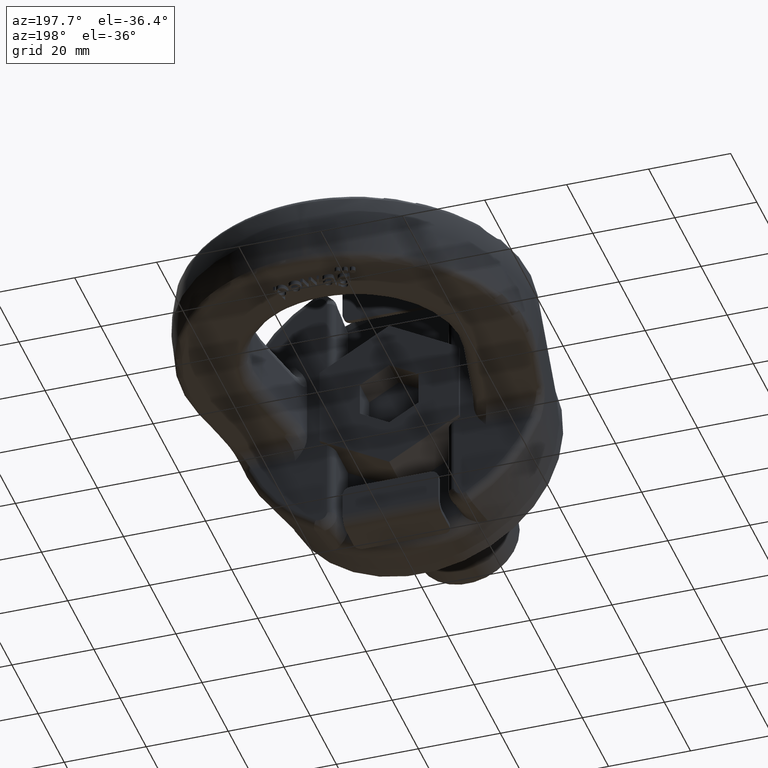
[diagram: clean part render]
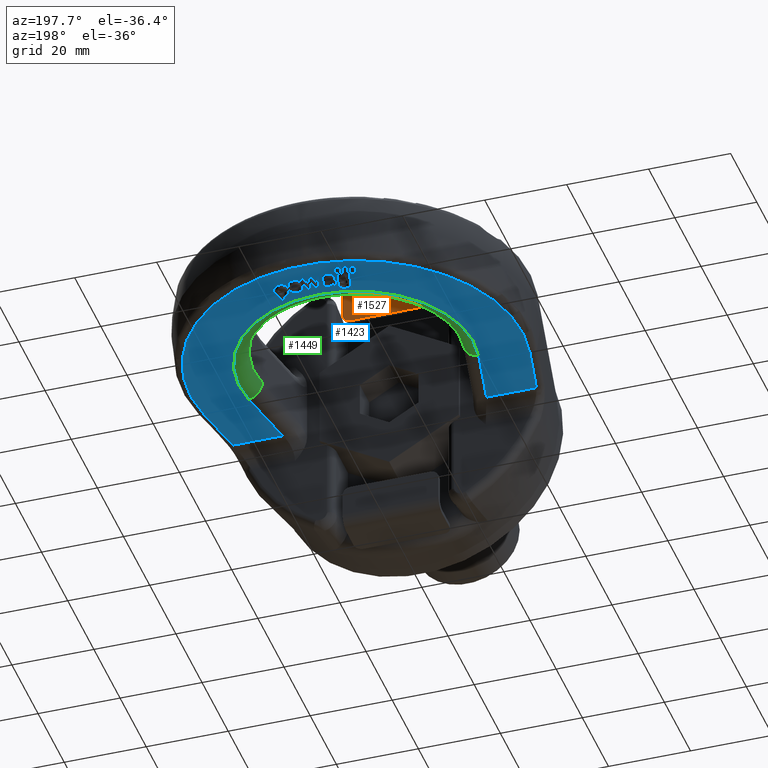
[diagram: same view with three faces highlighted in distinct colors, each labeled with its STEP entity id]
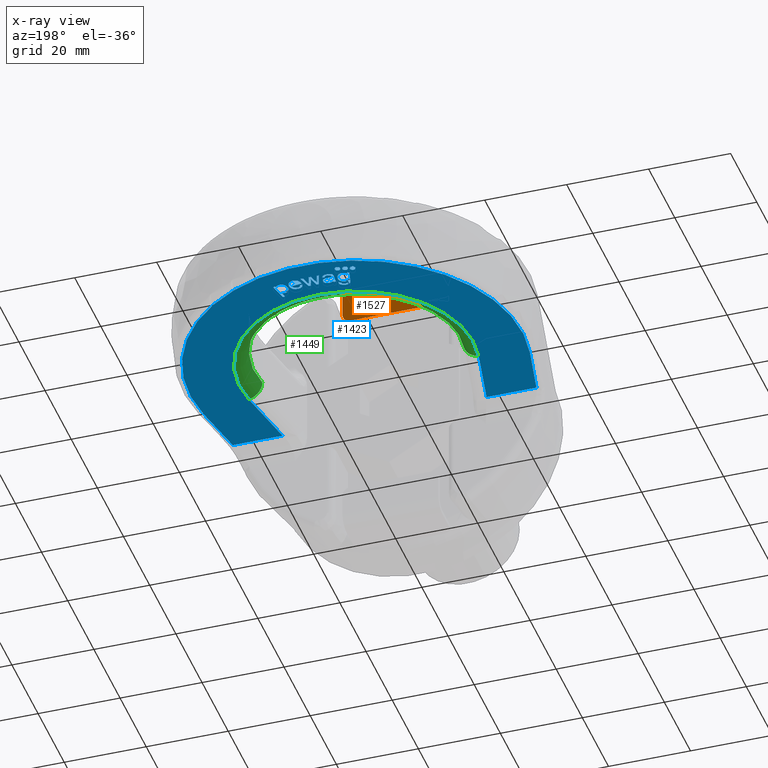
[diagram: x-ray of the same camera — body ghosted, the three highlighted faces saturated]
A machine part, auxiliary view with three faces highlighted in distinct colors.
The next image is the same camera in x-ray (body ghosted, the three faces saturated) — at least one of them is partly hidden behind the body in this view.
Their STEP definitions:

[orange] entity #1527 — the highlighted planar face has unit normal (0, -1, 0).
#1288=FACE_OUTER_BOUND('',#2065,.T.);
#1527=ADVANCED_FACE('',(#1288),#1656,.F.);
#1656=PLANE('',#5347);
#1740=CIRCLE('',#5345,2.);
#1741=CIRCLE('',#5346,2.);
#2065=EDGE_LOOP('',(#3774,#3775,#3776,#3777,#3778,#3779));
#2323=LINE('',#9553,#2659);
#2331=LINE('',#9575,#2667);
#2336=LINE('',#9588,#2672);
#2340=LINE('',#9602,#2676);
#2659=VECTOR('',#6105,1.);
#2667=VECTOR('',#6121,1.);
#2672=VECTOR('',#6130,1.);
#2676=VECTOR('',#6152,1.);
#3774=ORIENTED_EDGE('',*,*,#4804,.T.);
#3775=ORIENTED_EDGE('',*,*,#4812,.T.);
#3776=ORIENTED_EDGE('',*,*,#4798,.T.);
#3777=ORIENTED_EDGE('',*,*,#4813,.F.);
#3778=ORIENTED_EDGE('',*,*,#4788,.F.);
#3779=ORIENTED_EDGE('',*,*,#4814,.T.);
#4224=VERTEX_POINT('',#9552);
#4225=VERTEX_POINT('',#9554);
#4234=VERTEX_POINT('',#9574);
#4235=VERTEX_POINT('',#9576);
#4240=VERTEX_POINT('',#9587);
#4241=VERTEX_POINT('',#9589);
#4788=EDGE_CURVE('',#4224,#4225,#2323,.T.);
#4798=EDGE_CURVE('',#4235,#4234,#2331,.T.);
#4804=EDGE_CURVE('',#4241,#4240,#2336,.T.);
#4812=EDGE_CURVE('',#4240,#4235,#1740,.T.);
#4813=EDGE_CURVE('',#4225,#4234,#2340,.T.);
#4814=EDGE_CURVE('',#4224,#4241,#1741,.T.);
#5345=AXIS2_PLACEMENT_3D('',#9601,#6150,#6151);
#5346=AXIS2_PLACEMENT_3D('',#9603,#6153,#6154);
#5347=AXIS2_PLACEMENT_3D('',#9604,#6155,#6156);
#6105=DIRECTION('',(0.,0.,1.));
#6121=DIRECTION('',(0.,0.,1.));
#6130=DIRECTION('',(-1.,0.,0.));
#6150=DIRECTION('',(0.,1.,0.));
#6151=DIRECTION('',(0.,0.,-1.));
#6152=DIRECTION('',(-1.,0.,0.));
#6153=DIRECTION('',(0.,1.,0.));
#6154=DIRECTION('',(0.,0.,-1.));
#6155=DIRECTION('',(0.,-1.,0.));
#6156=DIRECTION('',(0.,0.,-1.));
#9552=CARTESIAN_POINT('',(11.7,24.,26.));
#9553=CARTESIAN_POINT('',(11.7,24.,24.));
#9554=CARTESIAN_POINT('',(11.7,24.,31.5));
#9574=CARTESIAN_POINT('',(-11.7,24.,31.5));
#9575=CARTESIAN_POINT('',(-11.7,24.,24.));
#9576=CARTESIAN_POINT('',(-11.7,24.,26.));
#9587=CARTESIAN_POINT('',(-9.7,24.,24.));
#9588=CARTESIAN_POINT('',(11.7,24.,24.));
#9589=CARTESIAN_POINT('',(9.7,24.,24.));
#9601=CARTESIAN_POINT('',(-9.7,24.,26.));
#9602=CARTESIAN_POINT('',(11.7,24.,31.5));
#9603=CARTESIAN_POINT('',(9.7,24.,26.));
#9604=CARTESIAN_POINT('',(11.7,24.,24.));

[blue] entity #1423 — the highlighted planar face has unit normal (-0, -0, 1).
#1423=ADVANCED_FACE('',(#1789,#1790,#1791,#1792,#1793,#1794,#1795,#1796,
#1797),#1605,.F.);
#1605=PLANE('',#5249);
#1709=CIRCLE('',#5244,0.675);
#1710=CIRCLE('',#5245,0.675000000000001);
#1711=CIRCLE('',#5246,0.675000000000001);
#1712=CIRCLE('',#5247,28.6);
#1713=CIRCLE('',#5248,40.5659956120887);
#1789=FACE_BOUND('',#1946,.T.);
#1790=FACE_BOUND('',#1947,.T.);
#1791=FACE_BOUND('',#1948,.T.);
#1792=FACE_BOUND('',#1949,.T.);
#1793=FACE_BOUND('',#1950,.T.);
#1794=FACE_BOUND('',#1951,.T.);
#1795=FACE_BOUND('',#1952,.T.);
#1796=FACE_BOUND('',#1953,.T.);
#1797=FACE_BOUND('',#1954,.T.);
#1946=EDGE_LOOP('',(#3273,#3274,#3275,#3276,#3277,#3278,#3279));
#1947=EDGE_LOOP('',(#3280,#3281,#3282,#3283,#3284,#3285,#3286,#3287,#3288,
#3289,#3290,#3291,#3292,#3293,#3294));
#1948=EDGE_LOOP('',(#3295,#3296,#3297,#3298,#3299));
#1949=EDGE_LOOP('',(#3300));
#1950=EDGE_LOOP('',(#3301));
#1951=EDGE_LOOP('',(#3302));
#1952=EDGE_LOOP('',(#3303,#3304,#3305,#3306,#3307,#3308,#3309,#3310));
#1953=EDGE_LOOP('',(#3311,#3312,#3313,#3314,#3315,#3316));
#1954=EDGE_LOOP('',(#3317,#3318,#3319,#3320,#3321,#3322,#3323,#3324,#3325));
#2226=LINE('',#8094,#2534);
#2227=LINE('',#8126,#2535);
#2228=LINE('',#8128,#2536);
#2229=LINE('',#8129,#2537);
#2230=LINE('',#8132,#2538);
#2231=LINE('',#8134,#2539);
#2232=LINE('',#8136,#2540);
#2233=LINE('',#8150,#2541);
#2234=LINE('',#8152,#2542);
#2235=LINE('',#8168,#2543);
#2236=LINE('',#8170,#2544);
#2237=LINE('',#8172,#2545);
#2238=LINE('',#8174,#2546);
#2239=LINE('',#8176,#2547);
#2240=LINE('',#8192,#2548);
#2241=LINE('',#8215,#2549);
#2242=LINE('',#8225,#2550);
#2243=LINE('',#8227,#2551);
#2244=LINE('',#8241,#2552);
#2245=LINE('',#8243,#2553);
#2246=LINE('',#8244,#2554);
#2247=LINE('',#8247,#2555);
#2248=LINE('',#8249,#2556);
#2249=LINE('',#8251,#2557);
#2250=LINE('',#8253,#2558);
#2251=LINE('',#8277,#2559);
#2252=LINE('',#8322,#2560);
#2534=VECTOR('',#5806,1.);
#2535=VECTOR('',#5807,1.);
#2536=VECTOR('',#5808,1.);
#2537=VECTOR('',#5809,1.);
#2538=VECTOR('',#5810,1.);
#2539=VECTOR('',#5811,1.);
#2540=VECTOR('',#5812,1.);
#2541=VECTOR('',#5813,1.);
#2542=VECTOR('',#5814,1.);
#2543=VECTOR('',#5815,1.);
#2544=VECTOR('',#5816,1.);
#2545=VECTOR('',#5817,1.);
#2546=VECTOR('',#5818,1.);
#2547=VECTOR('',#5819,1.);
#2548=VECTOR('',#5820,1.);
#2549=VECTOR('',#5821,1.);
#2550=VECTOR('',#5830,1.);
#2551=VECTOR('',#5831,1.);
#2552=VECTOR('',#5834,1.);
#2553=VECTOR('',#5835,1.);
#2554=VECTOR('',#5836,1.);
#2555=VECTOR('',#5837,1.);
#2556=VECTOR('',#5838,1.);
#2557=VECTOR('',#5839,1.);
#2558=VECTOR('',#5840,1.);
#2559=VECTOR('',#5841,1.);
#2560=VECTOR('',#5842,1.);
#3273=ORIENTED_EDGE('',*,*,#4570,.T.);
#3274=ORIENTED_EDGE('',*,*,#4571,.T.);
#3275=ORIENTED_EDGE('',*,*,#4572,.T.);
#3276=ORIENTED_EDGE('',*,*,#4573,.T.);
#3277=ORIENTED_EDGE('',*,*,#4574,.T.);
#3278=ORIENTED_EDGE('',*,*,#4575,.T.);
#3279=ORIENTED_EDGE('',*,*,#4576,.T.);
#3280=ORIENTED_EDGE('',*,*,#4577,.T.);
#3281=ORIENTED_EDGE('',*,*,#4578,.T.);
#3282=ORIENTED_EDGE('',*,*,#4579,.T.);
#3283=ORIENTED_EDGE('',*,*,#4580,.T.);
#3284=ORIENTED_EDGE('',*,*,#4581,.T.);
#3285=ORIENTED_EDGE('',*,*,#4582,.T.);
#3286=ORIENTED_EDGE('',*,*,#4583,.T.);
#3287=ORIENTED_EDGE('',*,*,#4584,.T.);
#3288=ORIENTED_EDGE('',*,*,#4585,.T.);
#3289=ORIENTED_EDGE('',*,*,#4586,.T.);
#3290=ORIENTED_EDGE('',*,*,#4587,.T.);
#3291=ORIENTED_EDGE('',*,*,#4588,.T.);
#3292=ORIENTED_EDGE('',*,*,#4589,.T.);
#3293=ORIENTED_EDGE('',*,*,#4590,.T.);
#3294=ORIENTED_EDGE('',*,*,#4591,.T.);
#3295=ORIENTED_EDGE('',*,*,#4592,.T.);
#3296=ORIENTED_EDGE('',*,*,#4593,.T.);
#3297=ORIENTED_EDGE('',*,*,#4594,.T.);
#3298=ORIENTED_EDGE('',*,*,#4595,.T.);
#3299=ORIENTED_EDGE('',*,*,#4596,.T.);
#3300=ORIENTED_EDGE('',*,*,#4597,.F.);
#3301=ORIENTED_EDGE('',*,*,#4598,.F.);
#3302=ORIENTED_EDGE('',*,*,#4599,.F.);
#3303=ORIENTED_EDGE('',*,*,#4600,.T.);
#3304=ORIENTED_EDGE('',*,*,#4601,.T.);
#3305=ORIENTED_EDGE('',*,*,#4602,.T.);
#3306=ORIENTED_EDGE('',*,*,#4603,.T.);
#3307=ORIENTED_EDGE('',*,*,#4604,.T.);
#3308=ORIENTED_EDGE('',*,*,#4605,.T.);
#3309=ORIENTED_EDGE('',*,*,#4606,.T.);
#3310=ORIENTED_EDGE('',*,*,#4607,.T.);
#3311=ORIENTED_EDGE('',*,*,#4608,.T.);
#3312=ORIENTED_EDGE('',*,*,#4609,.T.);
#3313=ORIENTED_EDGE('',*,*,#4610,.T.);
#3314=ORIENTED_EDGE('',*,*,#4611,.T.);
#3315=ORIENTED_EDGE('',*,*,#4612,.T.);
#3316=ORIENTED_EDGE('',*,*,#4613,.T.);
#3317=ORIENTED_EDGE('',*,*,#4614,.T.);
#3318=ORIENTED_EDGE('',*,*,#4615,.T.);
#3319=ORIENTED_EDGE('',*,*,#4616,.T.);
#3320=ORIENTED_EDGE('',*,*,#4617,.T.);
#3321=ORIENTED_EDGE('',*,*,#4618,.T.);
#3322=ORIENTED_EDGE('',*,*,#4619,.T.);
#3323=ORIENTED_EDGE('',*,*,#4620,.T.);
#3324=ORIENTED_EDGE('',*,*,#4621,.T.);
#3325=ORIENTED_EDGE('',*,*,#4622,.T.);
#4087=VERTEX_POINT('',#8087);
#4088=VERTEX_POINT('',#8088);
#4089=VERTEX_POINT('',#8093);
#4090=VERTEX_POINT('',#8095);
#4091=VERTEX_POINT('',#8108);
#4092=VERTEX_POINT('',#8125);
#4093=VERTEX_POINT('',#8127);
#4094=VERTEX_POINT('',#8130);
#4095=VERTEX_POINT('',#8131);
#4096=VERTEX_POINT('',#8133);
#4097=VERTEX_POINT('',#8135);
#4098=VERTEX_POINT('',#8137);
#4099=VERTEX_POINT('',#8144);
#4100=VERTEX_POINT('',#8149);
#4101=VERTEX_POINT('',#8151);
#4102=VERTEX_POINT('',#8153);
#4103=VERTEX_POINT('',#8160);
#4104=VERTEX_POINT('',#8167);
#4105=VERTEX_POINT('',#8169);
#4106=VERTEX_POINT('',#8171);
#4107=VERTEX_POINT('',#8173);
#4108=VERTEX_POINT('',#8175);
#4109=VERTEX_POINT('',#8185);
#4110=VERTEX_POINT('',#8186);
#4111=VERTEX_POINT('',#8191);
#4112=VERTEX_POINT('',#8193);
#4113=VERTEX_POINT('',#8214);
#4114=VERTEX_POINT('',#8217);
#4115=VERTEX_POINT('',#8219);
#4116=VERTEX_POINT('',#8221);
#4117=VERTEX_POINT('',#8223);
#4118=VERTEX_POINT('',#8224);
#4119=VERTEX_POINT('',#8226);
#4120=VERTEX_POINT('',#8228);
#4121=VERTEX_POINT('',#8233);
#4122=VERTEX_POINT('',#8235);
#4123=VERTEX_POINT('',#8240);
#4124=VERTEX_POINT('',#8242);
#4125=VERTEX_POINT('',#8245);
#4126=VERTEX_POINT('',#8246);
#4127=VERTEX_POINT('',#8248);
#4128=VERTEX_POINT('',#8250);
#4129=VERTEX_POINT('',#8252);
#4130=VERTEX_POINT('',#8254);
#4131=VERTEX_POINT('',#8278);
#4132=VERTEX_POINT('',#8279);
#4133=VERTEX_POINT('',#8284);
#4134=VERTEX_POINT('',#8301);
#4135=VERTEX_POINT('',#8308);
#4136=VERTEX_POINT('',#8321);
#4137=VERTEX_POINT('',#8323);
#4138=VERTEX_POINT('',#8328);
#4139=VERTEX_POINT('',#8341);
#4570=EDGE_CURVE('',#4087,#4088,#4995,.T.);
#4571=EDGE_CURVE('',#4088,#4089,#4996,.T.);
#4572=EDGE_CURVE('',#4089,#4090,#2226,.T.);
#4573=EDGE_CURVE('',#4090,#4091,#4997,.T.);
#4574=EDGE_CURVE('',#4091,#4092,#4998,.T.);
#4575=EDGE_CURVE('',#4092,#4093,#2227,.T.);
#4576=EDGE_CURVE('',#4093,#4087,#2228,.T.);
#4577=EDGE_CURVE('',#4094,#4095,#2229,.T.);
#4578=EDGE_CURVE('',#4095,#4096,#2230,.T.);
#4579=EDGE_CURVE('',#4096,#4097,#2231,.T.);
#4580=EDGE_CURVE('',#4097,#4098,#2232,.T.);
#4581=EDGE_CURVE('',#4098,#4099,#4999,.T.);
#4582=EDGE_CURVE('',#4099,#4100,#5000,.T.);
#4583=EDGE_CURVE('',#4100,#4101,#2233,.T.);
#4584=EDGE_CURVE('',#4101,#4102,#2234,.T.);
#4585=EDGE_CURVE('',#4102,#4103,#5001,.T.);
#4586=EDGE_CURVE('',#4103,#4104,#5002,.T.);
#4587=EDGE_CURVE('',#4104,#4105,#2235,.T.);
#4588=EDGE_CURVE('',#4105,#4106,#2236,.T.);
#4589=EDGE_CURVE('',#4106,#4107,#2237,.T.);
#4590=EDGE_CURVE('',#4107,#4108,#2238,.T.);
#4591=EDGE_CURVE('',#4108,#4094,#2239,.T.);
#4592=EDGE_CURVE('',#4109,#4110,#5003,.T.);
#4593=EDGE_CURVE('',#4110,#4111,#5004,.T.);
#4594=EDGE_CURVE('',#4111,#4112,#2240,.T.);
#4595=EDGE_CURVE('',#4112,#4113,#5005,.T.);
#4596=EDGE_CURVE('',#4113,#4109,#2241,.T.);
#4597=EDGE_CURVE('',#4114,#4114,#1709,.T.);
#4598=EDGE_CURVE('',#4115,#4115,#1710,.T.);
#4599=EDGE_CURVE('',#4116,#4116,#1711,.T.);
#4600=EDGE_CURVE('',#4117,#4118,#1712,.T.);
#4601=EDGE_CURVE('',#4118,#4119,#2242,.T.);
#4602=EDGE_CURVE('',#4119,#4120,#2243,.T.);
#4603=EDGE_CURVE('',#4120,#4121,#5006,.T.);
#4604=EDGE_CURVE('',#4121,#4122,#1713,.T.);
#4605=EDGE_CURVE('',#4122,#4123,#5007,.T.);
#4606=EDGE_CURVE('',#4123,#4124,#2244,.T.);
#4607=EDGE_CURVE('',#4124,#4117,#2245,.T.);
#4608=EDGE_CURVE('',#4125,#4126,#2246,.T.);
#4609=EDGE_CURVE('',#4126,#4127,#2247,.T.);
#4610=EDGE_CURVE('',#4127,#4128,#2248,.T.);
#4611=EDGE_CURVE('',#4128,#4129,#2249,.T.);
#4612=EDGE_CURVE('',#4129,#4130,#2250,.T.);
#4613=EDGE_CURVE('',#4130,#4125,#5008,.T.);
#4614=EDGE_CURVE('',#4131,#4132,#2251,.T.);
#4615=EDGE_CURVE('',#4132,#4133,#5009,.T.);
#4616=EDGE_CURVE('',#4133,#4134,#5010,.T.);
#4617=EDGE_CURVE('',#4134,#4135,#5011,.T.);
#4618=EDGE_CURVE('',#4135,#4136,#5012,.T.);
#4619=EDGE_CURVE('',#4136,#4137,#2252,.T.);
#4620=EDGE_CURVE('',#4137,#4138,#5013,.T.);
#4621=EDGE_CURVE('',#4138,#4139,#5014,.T.);
#4622=EDGE_CURVE('',#4139,#4131,#5015,.T.);
#4995=B_SPLINE_CURVE_WITH_KNOTS('',3,(#8075,#8076,#8077,#8078,#8079,#8080,
#8081,#8082,#8083,#8084,#8085,#8086),.UNSPECIFIED.,.F.,.F.,(4,2,2,2,2,4),
(0.,0.305645754892096,0.470829306249221,0.63601285760634,0.802206343843957,
1.),.UNSPECIFIED.);
#4996=B_SPLINE_CURVE_WITH_KNOTS('',3,(#8089,#8090,#8091,#8092),
 .UNSPECIFIED.,.F.,.F.,(4,4),(0.,1.),.UNSPECIFIED.);
#4997=B_SPLINE_CURVE_WITH_KNOTS('',3,(#8096,#8097,#8098,#8099,#8100,#8101,
#8102,#8103,#8104,#8105,#8106,#8107),.UNSPECIFIED.,.F.,.F.,(4,2,2,2,2,4),
(0.,0.16330465130929,0.38230378424853,0.619375661168191,0.856447538087858,
1.),.UNSPECIFIED.);
#4998=B_SPLINE_CURVE_WITH_KNOTS('',3,(#8109,#8110,#8111,#8112,#8113,#8114,
#8115,#8116,#8117,#8118,#8119,#8120,#8121,#8122,#8123,#8124),
 .UNSPECIFIED.,.F.,.F.,(4,2,2,2,2,2,2,4),(0.,0.139503666745451,0.312880428291714,
0.486257189837977,0.605370995480449,0.723854105689068,0.84233721589769,
1.),.UNSPECIFIED.);
#4999=B_SPLINE_CURVE_WITH_KNOTS('',3,(#8138,#8139,#8140,#8141,#8142,#8143),
 .UNSPECIFIED.,.F.,.F.,(4,2,4),(0.,0.72890960765496,1.),.UNSPECIFIED.);
#5000=B_SPLINE_CURVE_WITH_KNOTS('',3,(#8145,#8146,#8147,#8148),
 .UNSPECIFIED.,.F.,.F.,(4,4),(0.,1.),.UNSPECIFIED.);
#5001=B_SPLINE_CURVE_WITH_KNOTS('',3,(#8154,#8155,#8156,#8157,#8158,#8159),
 .UNSPECIFIED.,.F.,.F.,(4,2,4),(0.,0.752082276025109,1.),.UNSPECIFIED.);
#5002=B_SPLINE_CURVE_WITH_KNOTS('',3,(#8161,#8162,#8163,#8164,#8165,#8166),
 .UNSPECIFIED.,.F.,.F.,(4,2,4),(0.,0.250451922487258,1.),.UNSPECIFIED.);
#5003=B_SPLINE_CURVE_WITH_KNOTS('',3,(#8177,#8178,#8179,#8180,#8181,#8182,
#8183,#8184),.UNSPECIFIED.,.F.,.F.,(4,2,2,4),(0.,0.363477968613207,0.728087675912438,
1.),.UNSPECIFIED.);
#5004=B_SPLINE_CURVE_WITH_KNOTS('',3,(#8187,#8188,#8189,#8190),
 .UNSPECIFIED.,.F.,.F.,(4,4),(0.,1.),.UNSPECIFIED.);
#5005=B_SPLINE_CURVE_WITH_KNOTS('',3,(#8194,#8195,#8196,#8197,#8198,#8199,
#8200,#8201,#8202,#8203,#8204,#8205,#8206,#8207,#8208,#8209,#8210,#8211,
#8212,#8213),.UNSPECIFIED.,.F.,.F.,(4,2,2,2,2,2,2,2,2,4),(0.,0.102921203122039,
0.206156274885325,0.336063021724231,0.465707475917729,0.599570296299737,
0.733433116681745,0.862845255056168,0.992257393430589,1.),.UNSPECIFIED.);
#5006=B_SPLINE_CURVE_WITH_KNOTS('',3,(#8229,#8230,#8231,#8232),
 .UNSPECIFIED.,.F.,.F.,(4,4),(0.,1.),.UNSPECIFIED.);
#5007=B_SPLINE_CURVE_WITH_KNOTS('',3,(#8236,#8237,#8238,#8239),
 .UNSPECIFIED.,.F.,.F.,(4,4),(0.,1.),.UNSPECIFIED.);
#5008=B_SPLINE_CURVE_WITH_KNOTS('',3,(#8255,#8256,#8257,#8258,#8259,#8260,
#8261,#8262,#8263,#8264,#8265,#8266,#8267,#8268,#8269,#8270,#8271,#8272,
#8273,#8274,#8275,#8276),.UNSPECIFIED.,.F.,.F.,(4,2,2,2,2,2,2,2,2,2,4),
(0.,0.0830854503763968,0.16567829675509,0.273272220956522,0.380460889370554,
0.487248686046716,0.601946689884068,0.717055250849214,0.831909514623434,
0.915821305508709,1.),.UNSPECIFIED.);
#5009=B_SPLINE_CURVE_WITH_KNOTS('',3,(#8280,#8281,#8282,#8283),
 .UNSPECIFIED.,.F.,.F.,(4,4),(0.,1.),.UNSPECIFIED.);
#5010=B_SPLINE_CURVE_WITH_KNOTS('',3,(#8285,#8286,#8287,#8288,#8289,#8290,
#8291,#8292,#8293,#8294,#8295,#8296,#8297,#8298,#8299,#8300),
 .UNSPECIFIED.,.F.,.F.,(4,2,2,2,2,2,2,4),(0.,0.121639465164559,0.243930904991181,
0.445161792748216,0.64639268050526,0.763565096161255,0.881519242448362,
1.),.UNSPECIFIED.);
#5011=B_SPLINE_CURVE_WITH_KNOTS('',3,(#8302,#8303,#8304,#8305,#8306,#8307),
 .UNSPECIFIED.,.F.,.F.,(4,2,4),(0.,0.329344693449402,1.),.UNSPECIFIED.);
#5012=B_SPLINE_CURVE_WITH_KNOTS('',3,(#8309,#8310,#8311,#8312,#8313,#8314,
#8315,#8316,#8317,#8318,#8319,#8320),.UNSPECIFIED.,.F.,.F.,(4,2,2,2,2,4),
(0.,0.017397732214284,0.217983350684933,0.490675035316411,0.745337517658204,
1.),.UNSPECIFIED.);
#5013=B_SPLINE_CURVE_WITH_KNOTS('',3,(#8324,#8325,#8326,#8327),
 .UNSPECIFIED.,.F.,.F.,(4,4),(0.,1.),.UNSPECIFIED.);
#5014=B_SPLINE_CURVE_WITH_KNOTS('',3,(#8329,#8330,#8331,#8332,#8333,#8334,
#8335,#8336,#8337,#8338,#8339,#8340),.UNSPECIFIED.,.F.,.F.,(4,2,2,2,2,4),
(0.,0.201730292707493,0.402155128097318,0.60175516992587,0.800199545078057,
1.),.UNSPECIFIED.);
#5015=B_SPLINE_CURVE_WITH_KNOTS('',3,(#8342,#8343,#8344,#8345,#8346,#8347,
#8348,#8349,#8350,#8351),.UNSPECIFIED.,.F.,.F.,(4,2,2,2,4),(0.,0.161403604805116,
0.323059797411183,0.661780038481069,1.),.UNSPECIFIED.);
#5244=AXIS2_PLACEMENT_3D('',#8216,#5822,#5823);
#5245=AXIS2_PLACEMENT_3D('',#8218,#5824,#5825);
#5246=AXIS2_PLACEMENT_3D('',#8220,#5826,#5827);
#5247=AXIS2_PLACEMENT_3D('',#8222,#5828,#5829);
#5248=AXIS2_PLACEMENT_3D('',#8234,#5832,#5833);
#5249=AXIS2_PLACEMENT_3D('',#8352,#5843,#5844);
#5806=DIRECTION('',(-0.932627810685708,-0.360839807581679,-2.23260476361469E-15));
#5807=DIRECTION('',(-0.223073618739033,0.974801600646343,-3.94210342758039E-16));
#5808=DIRECTION('',(-0.974801600646342,-0.223073618739037,-2.31326333478166E-15));
#5809=DIRECTION('',(0.258669280108078,-0.965965943254921,4.78771907714282E-16));
#5810=DIRECTION('',(0.999999996290981,8.61280282547047E-5,2.34292206794192E-15));
#5811=DIRECTION('',(0.297325554913541,0.954776159314504,8.22400089714989E-16));
#5812=DIRECTION('',(-0.999999996290981,-8.612802824002E-5,-2.34292206794192E-15));
#5813=DIRECTION('',(-0.266681171387154,0.963784806285913,-4.9783042105707E-16));
#5814=DIRECTION('',(-0.999999996290981,-8.61280282983557E-5,-2.34292206794193E-15));
#5815=DIRECTION('',(-0.999999996290981,-8.6128028285645E-5,-2.34292206794193E-15));
#5816=DIRECTION('',(0.303102709413077,-0.952957893900067,5.84589291429284E-16));
#5817=DIRECTION('',(0.999999996290981,8.61280282536147E-5,2.34292206794192E-15));
#5818=DIRECTION('',(0.260560028929124,0.965457648643613,7.37669042926317E-16));
#5819=DIRECTION('',(0.226108510352172,0.974102120696964,6.58091129551161E-16));
#5820=DIRECTION('',(-0.999999992948009,-0.000118760184174544,-2.34292635943371E-15));
#5821=DIRECTION('',(0.99278877090744,-0.119876838297037,2.31022155184073E-15));
#5822=DIRECTION('',(2.34291072916505E-15,1.31751150074188E-16,-1.));
#5823=DIRECTION('',(0.,0.999999999999993,0.));
#5824=DIRECTION('',(2.34291072916505E-15,1.31751150074188E-16,-1.));
#5825=DIRECTION('',(0.,0.999999999999992,0.));
#5826=DIRECTION('',(2.34291072916505E-15,1.31751150074188E-16,-1.));
#5827=DIRECTION('',(0.,0.999999999999992,0.));
#5828=DIRECTION('',(-2.34291072916505E-15,-1.31751150074188E-16,1.));
#5829=DIRECTION('',(-3.23232997659396E-31,1.,1.21309333984392E-16));
#5830=DIRECTION('',(0.194932443491919,-0.980816671184921,3.27485588879027E-16));
#5831=DIRECTION('',(-1.,-5.23959618485329E-16,-2.34291072916505E-15));
#5832=DIRECTION('',(2.34291072916505E-15,1.31751150074188E-16,-1.));
#5833=DIRECTION('',(-3.03849356045514E-31,1.,1.28288985624688E-16));
#5834=DIRECTION('',(-1.,5.23959618485329E-16,-2.34291072916505E-15));
#5835=DIRECTION('',(0.194932443491919,0.980816671184921,5.85933037760127E-16));
#5836=DIRECTION('',(-0.222905699950523,-0.974840011965844,-6.5068444872096E-16));
#5837=DIRECTION('',(0.974840011965845,-0.222905699950521,2.25459504092759E-15));
#5838=DIRECTION('',(0.222905699950521,0.974840011965845,6.50684448720956E-16));
#5839=DIRECTION('',(-0.974840011965847,0.22290569995051,-2.2545950409276E-15));
#5840=DIRECTION('',(-0.222905699950525,-0.974840011965844,-6.50684448720965E-16));
#5841=DIRECTION('',(0.992768106667003,0.120047850396479,2.34178349103666E-15));
#5842=DIRECTION('',(0.968001568160623,0.250944145256619,2.30100343963406E-15));
#5843=DIRECTION('',(-2.34291072916505E-15,-1.31751150074188E-16,1.));
#5844=DIRECTION('',(0.,1.,1.31838984174237E-16));
#8075=CARTESIAN_POINT('',(-9.29424571061466,84.5576656774909,-9.00000000000002));
#8076=CARTESIAN_POINT('',(-9.08469689301176,83.6419656320641,-9.00000000000002));
#8077=CARTESIAN_POINT('',(-8.87514807540886,82.7262655866373,-9.00000000000002));
#8078=CARTESIAN_POINT('',(-8.55235044829263,81.3156835313658,-9.00000000000002));
#8079=CARTESIAN_POINT('',(-8.42084670474142,80.9773212150293,-9.00000000000002));
#8080=CARTESIAN_POINT('',(-8.12081574952011,80.6113916065159,-9.00000000000002));
#8081=CARTESIAN_POINT('',(-7.92118375906972,80.4846570530188,-9.00000000000002));
#8082=CARTESIAN_POINT('',(-7.42219318339072,80.3477198308902,-9.00000000000002));
#8083=CARTESIAN_POINT('',(-7.13466686310455,80.350511547545,-9.00000000000002));
#8084=CARTESIAN_POINT('',(-6.42445154971634,80.513037234758,-9.00000000000002));
#8085=CARTESIAN_POINT('',(-6.13225005464365,80.6696566448608,-9.00000000000002));
#8086=CARTESIAN_POINT('',(-5.93378400328477,80.8945776478991,-9.00000000000002));
#8087=CARTESIAN_POINT('',(-9.29424571061466,84.5576656774909,-9.00000000000002));
#8088=CARTESIAN_POINT('',(-5.93378400328477,80.8945776478991,-9.00000000000002));
#8089=CARTESIAN_POINT('',(-5.93378400328477,80.8945776478991,-9.00000000000001));
#8090=CARTESIAN_POINT('',(-5.73531795192589,81.1194986509375,-9.00000000000001));
#8091=CARTESIAN_POINT('',(-5.67994263059772,81.4026077297059,-9.00000000000001));
#8092=CARTESIAN_POINT('',(-5.766259414016,81.7430439980933,-9.00000000000001));
#8093=CARTESIAN_POINT('',(-5.766259414016,81.7430439980933,-9.00000000000002));
#8094=CARTESIAN_POINT('',(-68.3995491396464,57.5098140280508,-9.00000000000017));
#8095=CARTESIAN_POINT('',(-6.28177261020001,81.5435885664779,-9.00000000000001));
#8096=CARTESIAN_POINT('',(-6.28177261020001,81.5435885664779,-9.00000000000001));
#8097=CARTESIAN_POINT('',(-6.26648808708458,81.3770298297902,-9.00000000000001));
#8098=CARTESIAN_POINT('',(-6.30118264900433,81.2450908327058,-9.00000000000002));
#8099=CARTESIAN_POINT('',(-6.49940759481856,81.0172619244844,-9.00000000000002));
#8100=CARTESIAN_POINT('',(-6.67369661716648,80.9248361658599,-9.00000000000002));
#8101=CARTESIAN_POINT('',(-7.16353965485705,80.81274047484,-9.00000000000002));
#8102=CARTESIAN_POINT('',(-7.37009097572485,80.8174349584639,-9.00000000000002));
#8103=CARTESIAN_POINT('',(-7.69212309313375,80.9539497859577,-9.00000000000002));
#8104=CARTESIAN_POINT('',(-7.81785276737019,81.072796248486,-9.00000000000002));
#8105=CARTESIAN_POINT('',(-7.96081601963853,81.3434466777721,-9.00000000000002));
#8106=CARTESIAN_POINT('',(-8.02695537310999,81.5717239197035,-9.00000000000002));
#8107=CARTESIAN_POINT('',(-8.10505012933671,81.9234892973702,-9.00000000000002));
#8108=CARTESIAN_POINT('',(-8.10505012933671,81.9234892973702,-9.00000000000002));
#8109=CARTESIAN_POINT('',(-8.10505012933671,81.9234892973702,-9.00000000000002));
#8110=CARTESIAN_POINT('',(-7.8015804188236,81.700060319755,-9.00000000000002));
#8111=CARTESIAN_POINT('',(-7.47197762261022,81.6302300818374,-9.00000000000001));
#8112=CARTESIAN_POINT('',(-6.67041628820746,81.8136593944155,-9.00000000000001));
#8113=CARTESIAN_POINT('',(-6.3615370618976,82.0496759801191,-9.00000000000001));
#8114=CARTESIAN_POINT('',(-6.01944111211864,82.791653747847,-9.00000000000001));
#8115=CARTESIAN_POINT('',(-5.98380741628149,83.1977874880825,-9.00000000000001));
#8116=CARTESIAN_POINT('',(-6.15406583058385,83.9417937749918,-9.00000000000001));
#8117=CARTESIAN_POINT('',(-6.27395847382674,84.2084134800823,-9.00000000000001));
#8118=CARTESIAN_POINT('',(-6.61446676393223,84.6699335977474,-9.00000000000001));
#8119=CARTESIAN_POINT('',(-6.82156480102733,84.8318199837231,-9.00000000000001));
#8120=CARTESIAN_POINT('',(-7.31001020409493,85.0129191199741,-9.00000000000001));
#8121=CARTESIAN_POINT('',(-7.57510651271865,85.0266541708322,-9.00000000000001));
#8122=CARTESIAN_POINT('',(-8.24307429138762,84.8737964103505,-9.00000000000002));
#8123=CARTESIAN_POINT('',(-8.52240823571292,84.6504457053487,-9.00000000000002));
#8124=CARTESIAN_POINT('',(-8.70059151186885,84.2896334544987,-9.00000000000002));
#8125=CARTESIAN_POINT('',(-8.70059151186885,84.2896334544987,-9.00000000000002));
#8126=CARTESIAN_POINT('',(-16.6157686278512,118.877888962584,-9.00000000000004));
#8127=CARTESIAN_POINT('',(-8.78841711924654,84.6734195029496,-9.00000000000002));
#8128=CARTESIAN_POINT('',(-78.1726484913952,68.7955305403656,-9.00000000000019));
#8129=CARTESIAN_POINT('',(-10.236422149737,123.288199887155,-9.00000000000002));
#8130=CARTESIAN_POINT('',(0.0145550087828962,85.0072922506664,-9.));
#8131=CARTESIAN_POINT('',(0.685949453693918,82.5000592000172,-9.));
#8132=CARTESIAN_POINT('',(-85.9982337374865,82.4925932622104,-9.00000000000021));
#8133=CARTESIAN_POINT('',(1.27279138553176,82.5001097435559,-9.));
#8134=CARTESIAN_POINT('',(-0.622844749113081,76.4128153345022,-9.00000000000001));
#8135=CARTESIAN_POINT('',(2.28806339781612,85.7603660401607,-9.));
#8136=CARTESIAN_POINT('',(-85.9985145294008,85.7527620912555,-9.0000000000002));
#8137=CARTESIAN_POINT('',(1.70707817188485,85.7603160010485,-9.));
#8138=CARTESIAN_POINT('',(1.70707817188485,85.7603160010485,-9.));
#8139=CARTESIAN_POINT('',(1.53104058420696,85.1329025253625,-9.));
#8140=CARTESIAN_POINT('',(1.35500299652907,84.5054890496764,-9.));
#8141=CARTESIAN_POINT('',(1.1134948783356,83.6447328336834,-9.));
#8142=CARTESIAN_POINT('',(1.04781538521732,83.4114487738806,-9.));
#8143=CARTESIAN_POINT('',(0.982240373400384,83.1781353738257,-9.));
#8144=CARTESIAN_POINT('',(0.982240373400384,83.1781353738257,-9.));
#8145=CARTESIAN_POINT('',(0.982240373400384,83.1781353738257,-9.));
#8146=CARTESIAN_POINT('',(0.974038010640577,83.2126703543769,-9.));
#8147=CARTESIAN_POINT('',(0.916622958567239,83.4371473748611,-9.));
#8148=CARTESIAN_POINT('',(0.811166657511373,83.8504153466054,-9.));
#8149=CARTESIAN_POINT('',(0.811166657511373,83.8504153466054,-9.));
#8150=CARTESIAN_POINT('',(-10.2846321332948,123.950592770304,-9.00000000000002));
#8151=CARTESIAN_POINT('',(0.282727295408178,85.7601933245156,-9.));
#8152=CARTESIAN_POINT('',(-85.9985145293998,85.7527620912505,-9.0000000000002));
#8153=CARTESIAN_POINT('',(-0.294743906979156,85.7601435880593,-9.));
#8154=CARTESIAN_POINT('',(-0.294743906979156,85.7601435880593,-9.));
#8155=CARTESIAN_POINT('',(-0.460239159626062,85.129661181519,-9.));
#8156=CARTESIAN_POINT('',(-0.625734412272969,84.4991787749786,-9.));
#8157=CARTESIAN_POINT('',(-0.845783811019047,83.6608630392687,-9.));
#8158=CARTESIAN_POINT('',(-0.902080870097008,83.4534911172768,-9.));
#8159=CARTESIAN_POINT('',(-0.957506472685573,83.2458884916962,-9.));
#8160=CARTESIAN_POINT('',(-0.957506472685573,83.2458884916962,-9.));
#8161=CARTESIAN_POINT('',(-0.957506472685573,83.2458884916962,-9.));
#8162=CARTESIAN_POINT('',(-1.02077697476944,83.455783273349,-9.));
#8163=CARTESIAN_POINT('',(-1.0840474768533,83.6656780550018,-9.));
#8164=CARTESIAN_POINT('',(-1.33667281690069,84.5037422214428,-9.00000000000001));
#8165=CARTESIAN_POINT('',(-1.52615983292031,85.1318717550064,-9.00000000000001));
#8166=CARTESIAN_POINT('',(-1.71558075991189,85.7600212141823,-9.00000000000001));
#8167=CARTESIAN_POINT('',(-1.71558075991189,85.7600212141823,-9.00000000000001));
#8168=CARTESIAN_POINT('',(-85.9985145294,85.7527620912516,-9.0000000000002));
#8169=CARTESIAN_POINT('',(-2.26259709158508,85.759974100744,-9.00000000000001));
#8170=CARTESIAN_POINT('',(-14.9353372767005,125.603193648782,-9.00000000000003));
#8171=CARTESIAN_POINT('',(-1.22567935420898,82.4998945551966,-9.00000000000001));
#8172=CARTESIAN_POINT('',(-85.9982337374865,82.4925932622105,-9.00000000000021));
#8173=CARTESIAN_POINT('',(-0.641180104733766,82.4999448969647,-9.00000000000001));
#8174=CARTESIAN_POINT('',(-1.27933371802375,80.135383112517,-9.00000000000001));
#8175=CARTESIAN_POINT('',(-0.114244731012326,84.4524077861925,-9.00000000000001));
#8176=CARTESIAN_POINT('',(-0.420000252435624,83.1351769514515,-9.00000000000001));
#8177=CARTESIAN_POINT('',(5.03091311672714,83.6278966125683,-8.99999999999999));
#8178=CARTESIAN_POINT('',(4.96706271783167,83.2749859227258,-8.99999999999999));
#8179=CARTESIAN_POINT('',(4.83188378306248,83.0153352295111,-8.99999999999999));
#8180=CARTESIAN_POINT('',(4.41822585234218,82.6820357560006,-8.99999999999999));
#8181=CARTESIAN_POINT('',(4.17716167522602,82.6154966286787,-8.99999999999999));
#8182=CARTESIAN_POINT('',(3.69804919230485,82.6733482999751,-8.99999999999999));
#8183=CARTESIAN_POINT('',(3.5299630802933,82.7469836529213,-8.99999999999999));
#8184=CARTESIAN_POINT('',(3.39729737207409,82.8696814401805,-8.99999999999999));
#8185=CARTESIAN_POINT('',(5.03091311672714,83.6278966125683,-8.99999999999999));
#8186=CARTESIAN_POINT('',(3.39729737207409,82.8696814401805,-8.99999999999999));
#8187=CARTESIAN_POINT('',(3.39729737207409,82.8696814401805,-8.99999999999999));
#8188=CARTESIAN_POINT('',(3.26593255919594,82.9933816988327,-8.99999999999999));
#8189=CARTESIAN_POINT('',(3.17109215783044,83.1752874963651,-8.99999999999999));
#8190=CARTESIAN_POINT('',(3.11421506428369,83.4175441922414,-8.99999999999999));
#8191=CARTESIAN_POINT('',(3.11421506428369,83.4175441922414,-9.));
#8192=CARTESIAN_POINT('',(-85.9976731270928,83.406961247913,-9.0000000000002));
#8193=CARTESIAN_POINT('',(2.52900139490929,83.4174746921578,-9.));
#8194=CARTESIAN_POINT('',(2.52900139490929,83.4174746921578,-9.));
#8195=CARTESIAN_POINT('',(2.58084977075379,83.0749442340472,-9.));
#8196=CARTESIAN_POINT('',(2.71841923814329,82.7974339998024,-8.99999999999999));
#8197=CARTESIAN_POINT('',(3.16568130320497,82.3718059692192,-8.99999999999999));
#8198=CARTESIAN_POINT('',(3.46910465471119,82.2429700136617,-8.99999999999999));
#8199=CARTESIAN_POINT('',(4.33313517609572,82.1386404219792,-8.99999999999999));
#8200=CARTESIAN_POINT('',(4.73209065399095,82.237730536629,-8.99999999999999));
#8201=CARTESIAN_POINT('',(5.36727192462434,82.7541248748364,-8.99999999999999));
#8202=CARTESIAN_POINT('',(5.55775237789013,83.1445244586683,-8.99999999999999));
#8203=CARTESIAN_POINT('',(5.68705928213148,84.2154105810861,-8.99999999999999));
#8204=CARTESIAN_POINT('',(5.5950836309451,84.6555504186951,-8.99999999999999));
#8205=CARTESIAN_POINT('',(5.0978538943046,85.3255137161527,-8.99999999999999));
#8206=CARTESIAN_POINT('',(4.74510671573863,85.5211678617606,-8.99999999999999));
#8207=CARTESIAN_POINT('',(3.85084094057752,85.6291482870685,-8.99999999999999));
#8208=CARTESIAN_POINT('',(3.47254155952062,85.5252448960747,-8.99999999999999));
#8209=CARTESIAN_POINT('',(2.84314376106992,85.0029146568927,-8.99999999999999));
#8210=CARTESIAN_POINT('',(2.6536400866032,84.6060391765813,-8.99999999999999));
#8211=CARTESIAN_POINT('',(2.58519160794396,84.0391666934231,-9.));
#8212=CARTESIAN_POINT('',(2.58042046082331,83.9898820896972,-9.));
#8213=CARTESIAN_POINT('',(2.57488019456814,83.924456636301,-9.));
#8214=CARTESIAN_POINT('',(2.57488019456814,83.924456636301,-9.));
#8215=CARTESIAN_POINT('',(-86.9973643451019,94.7400881072031,-9.00000000000021));
#8216=CARTESIAN_POINT('',(-7.16521590427104,86.9109696573414,-9.00000000000002));
#8217=CARTESIAN_POINT('',(-7.16521590427104,87.5859696573414,-9.00000000000002));
#8218=CARTESIAN_POINT('',(-8.87978072071516,86.5364132661105,-9.00000000000002));
#8219=CARTESIAN_POINT('',(-8.87978072071516,87.2114132661105,-9.00000000000002));
#8220=CARTESIAN_POINT('',(-10.575,86.0822584520426,-9.00000000000003));
#8221=CARTESIAN_POINT('',(-10.575,86.7572584520426,-9.00000000000003));
#8222=CARTESIAN_POINT('',(2.10861965624855E-14,50.,-9.00000000000001));
#8223=CARTESIAN_POINT('',(28.0513567958888,44.4249321161311,-8.99999999999994));
#8224=CARTESIAN_POINT('',(-28.0513567958887,44.4249321161311,-9.00000000000007));
#8225=CARTESIAN_POINT('',(-24.7468849285646,27.7982432034291,-9.00000000000007));
#8226=CARTESIAN_POINT('',(-24.8863556075524,28.5,-9.00000000000007));
#8227=CARTESIAN_POINT('',(-85.9999999999999,28.5,-9.00000000000021));
#8228=CARTESIAN_POINT('',(-37.0394879914715,28.5,-9.0000000000001));
#8229=CARTESIAN_POINT('',(-37.0394879914715,28.5,-9.0000000000001));
#8230=CARTESIAN_POINT('',(-37.9484297156584,32.9893738570883,-9.0000000000001));
#8231=CARTESIAN_POINT('',(-38.8562067330876,37.4789836274274,-9.0000000000001));
#8232=CARTESIAN_POINT('',(-39.7630426246474,41.9687833281329,-9.0000000000001));
#8233=CARTESIAN_POINT('',(-39.7630426246474,41.9687833281329,-9.0000000000001));
#8234=CARTESIAN_POINT('',(2.10861965624855E-14,50.,-9.00000000000001));
#8235=CARTESIAN_POINT('',(39.7630426246474,41.9687833281331,-8.99999999999992));
#8236=CARTESIAN_POINT('',(39.7630426246474,41.9687833281331,-8.99999999999992));
#8237=CARTESIAN_POINT('',(38.8562067330877,37.4789836274275,-8.99999999999992));
#8238=CARTESIAN_POINT('',(37.9484297156586,32.9893738570884,-8.99999999999992));
#8239=CARTESIAN_POINT('',(37.0394879914717,28.5,-8.99999999999993));
#8240=CARTESIAN_POINT('',(37.0394879914717,28.5,-8.99999999999993));
#8241=CARTESIAN_POINT('',(-86.,28.5000000000001,-9.00000000000021));
#8242=CARTESIAN_POINT('',(24.8863556075524,28.5,-8.99999999999995));
#8243=CARTESIAN_POINT('',(28.0513567958888,44.4249321161311,-8.99999999999994));
#8244=CARTESIAN_POINT('',(8.01844312223272,81.5018601871319,-8.99999999999999));
#8245=CARTESIAN_POINT('',(8.09437998426784,81.833957085109,-8.99999999999999));
#8246=CARTESIAN_POINT('',(7.7407759307009,80.2875301436406,-8.99999999999999));
#8247=CARTESIAN_POINT('',(-86.2776671915318,101.785669956508,-9.0000000000002));
#8248=CARTESIAN_POINT('',(8.28887365331331,80.162202802743,-8.99999999999999));
#8249=CARTESIAN_POINT('',(8.56654084484517,81.3765328462346,-8.99999999999998));
#8250=CARTESIAN_POINT('',(9.29400215681238,84.5579606617647,-8.99999999999998));
#8251=CARTESIAN_POINT('',(-85.272538688033,106.181427815529,-9.0000000000002));
#8252=CARTESIAN_POINT('',(8.795004855184,84.6720607617069,-8.99999999999998));
#8253=CARTESIAN_POINT('',(8.06754354321667,81.4906329461763,-8.99999999999999));
#8254=CARTESIAN_POINT('',(8.7005735839847,84.2590817236369,-8.99999999999998));
#8255=CARTESIAN_POINT('',(8.7005735839847,84.2590817236369,-8.99999999999998));
#8256=CARTESIAN_POINT('',(8.61991231466515,84.4475753753623,-8.99999999999998));
#8257=CARTESIAN_POINT('',(8.51402702002165,84.5993242845745,-8.99999999999998));
#8258=CARTESIAN_POINT('',(8.25486268253126,84.8281301223776,-8.99999999999998));
#8259=CARTESIAN_POINT('',(8.08405633224091,84.9102030284265,-8.99999999999998));
#8260=CARTESIAN_POINT('',(7.59761960342239,85.021431043473,-8.99999999999998));
#8261=CARTESIAN_POINT('',(7.33709314569912,85.0066059338666,-8.99999999999998));
#8262=CARTESIAN_POINT('',(6.85187819839206,84.8252426649564,-8.99999999999999));
#8263=CARTESIAN_POINT('',(6.64707993842751,84.6636814606454,-8.99999999999999));
#8264=CARTESIAN_POINT('',(6.31652815012759,84.2041384842741,-8.99999999999999));
#8265=CARTESIAN_POINT('',(6.1974606440618,83.9374983324424,-8.99999999999999));
#8266=CARTESIAN_POINT('',(6.05376088354113,83.309051970162,-8.99999999999999));
#8267=CARTESIAN_POINT('',(6.04616378415289,83.0025739477163,-8.99999999999999));
#8268=CARTESIAN_POINT('',(6.16533339535863,82.4287720681627,-8.99999999999999));
#8269=CARTESIAN_POINT('',(6.29275217165907,82.1892318023615,-8.99999999999999));
#8270=CARTESIAN_POINT('',(6.68086514485904,81.8079464181888,-8.99999999999999));
#8271=CARTESIAN_POINT('',(6.90315033094477,81.684760506831,-8.99999999999999));
#8272=CARTESIAN_POINT('',(7.33591915775748,81.5858041272473,-8.99999999999998));
#8273=CARTESIAN_POINT('',(7.50907310285853,81.5863615969736,-8.99999999999998));
#8274=CARTESIAN_POINT('',(7.83400939986111,81.6705544686539,-8.99999999999998));
#8275=CARTESIAN_POINT('',(7.97431613165436,81.7397779308786,-8.99999999999998));
#8276=CARTESIAN_POINT('',(8.09437998426784,81.833957085109,-8.99999999999998));
#8277=CARTESIAN_POINT('',(-82.345644419971,72.7793200103829,-9.0000000000002));
#8278=CARTESIAN_POINT('',(-5.39758761306643,82.0840597072168,-9.00000000000001));
#8279=CARTESIAN_POINT('',(-4.81498965732211,82.1545088199177,-9.00000000000001));
#8280=CARTESIAN_POINT('',(-4.81498965732211,82.1545088199177,-9.00000000000001));
#8281=CARTESIAN_POINT('',(-4.77052773417068,82.2746832334488,-9.00000000000001));
#8282=CARTESIAN_POINT('',(-4.74948503508279,82.412898098218,-9.00000000000001));
#8283=CARTESIAN_POINT('',(-4.75158516439365,82.5668676856605,-9.00000000000001));
#8284=CARTESIAN_POINT('',(-4.75158516439365,82.5668676856605,-9.00000000000001));
#8285=CARTESIAN_POINT('',(-4.75158516439365,82.5668676856605,-9.00000000000001));
#8286=CARTESIAN_POINT('',(-4.5237264012398,82.4193250034868,-9.00000000000001));
#8287=CARTESIAN_POINT('',(-4.31008843390881,82.3210840308,-9.00000000000001));
#8288=CARTESIAN_POINT('',(-3.91046237234504,82.225235049324,-9.00000000000001));
#8289=CARTESIAN_POINT('',(-3.70141833346057,82.2149516476907,-9.00000000000001));
#8290=CARTESIAN_POINT('',(-3.1199832478874,82.2852601434002,-9.00000000000001));
#8291=CARTESIAN_POINT('',(-2.85256031224451,82.4057252898137,-9.00000000000001));
#8292=CARTESIAN_POINT('',(-2.50617381612599,82.800122106805,-9.00000000000001));
#8293=CARTESIAN_POINT('',(-2.43530310123197,83.0336496048748,-9.00000000000001));
#8294=CARTESIAN_POINT('',(-2.48712728837551,83.4622237107844,-9.00000000000001));
#8295=CARTESIAN_POINT('',(-2.54189025856481,83.602867730927,-9.00000000000001));
#8296=CARTESIAN_POINT('',(-2.72051488326711,83.8465331664195,-9.00000000000001));
#8297=CARTESIAN_POINT('',(-2.82929162852927,83.940338214379,-9.00000000000001));
#8298=CARTESIAN_POINT('',(-3.08616056828768,84.0696556477159,-9.00000000000001));
#8299=CARTESIAN_POINT('',(-3.22664299911007,84.1137684720596,-9.00000000000001));
#8300=CARTESIAN_POINT('',(-3.38046550298258,84.1369126113253,-9.00000000000001));
#8301=CARTESIAN_POINT('',(-3.38046550298258,84.1369126113253,-9.00000000000001));
#8302=CARTESIAN_POINT('',(-3.38046550298258,84.1369126113253,-9.00000000000001));
#8303=CARTESIAN_POINT('',(-3.49439311505105,84.1521256042011,-9.00000000000001));
#8304=CARTESIAN_POINT('',(-3.66283742733102,84.1595867341978,-9.00000000000001));
#8305=CARTESIAN_POINT('',(-4.34335205871992,84.1582770125523,-9.00000000000001));
#8306=CARTESIAN_POINT('',(-4.68353091624579,84.1799494416239,-9.00000000000001));
#8307=CARTESIAN_POINT('',(-4.90518081883807,84.2273598462695,-9.00000000000001));
#8308=CARTESIAN_POINT('',(-4.90518081883807,84.2273598462695,-9.00000000000001));
#8309=CARTESIAN_POINT('',(-4.90518081883807,84.2273598462695,-9.00000000000001));
#8310=CARTESIAN_POINT('',(-4.91662761611762,84.3025076549267,-9.00000000000001));
#8311=CARTESIAN_POINT('',(-4.92359479524885,84.3503673377972,-9.00000000000001));
#8312=CARTESIAN_POINT('',(-4.95303093354638,84.5937974299538,-9.00000000000001));
#8313=CARTESIAN_POINT('',(-4.91861020654247,84.7579810825338,-9.00000000000001));
#8314=CARTESIAN_POINT('',(-4.69775721714766,85.0035665494763,-9.00000000000001));
#8315=CARTESIAN_POINT('',(-4.4927203643763,85.0900979504913,-9.00000000000001));
#8316=CARTESIAN_POINT('',(-3.94849712427981,85.1559067024755,-9.00000000000001));
#8317=CARTESIAN_POINT('',(-3.75007096040658,85.1346774160365,-9.00000000000001));
#8318=CARTESIAN_POINT('',(-3.47705574592249,84.9844781295597,-9.00000000000001));
#8319=CARTESIAN_POINT('',(-3.36584130586834,84.8355858723423,-9.00000000000001));
#8320=CARTESIAN_POINT('',(-3.27759429265979,84.6131822351285,-9.00000000000001));
#8321=CARTESIAN_POINT('',(-3.27759429265979,84.6131822351285,-9.00000000000001));
#8322=CARTESIAN_POINT('',(-76.3243034731943,65.6765972108402,-9.00000000000018));
#8323=CARTESIAN_POINT('',(-2.74105284366465,84.7522749181793,-9.00000000000001));
#8324=CARTESIAN_POINT('',(-2.74105284366465,84.7522749181793,-9.00000000000001));
#8325=CARTESIAN_POINT('',(-2.81883402533288,84.9759441083158,-9.00000000000001));
#8326=CARTESIAN_POINT('',(-2.92262298615914,85.1512449326694,-9.00000000000001));
#8327=CARTESIAN_POINT('',(-3.05358259631456,85.2780367742487,-9.00000000000001));
#8328=CARTESIAN_POINT('',(-3.05358259631456,85.2780367742487,-9.00000000000001));
#8329=CARTESIAN_POINT('',(-3.05358259631456,85.2780367742487,-9.00000000000001));
#8330=CARTESIAN_POINT('',(-3.18351753413122,85.4061120971018,-9.00000000000001));
#8331=CARTESIAN_POINT('',(-3.36177389251037,85.4947165911507,-9.00000000000001));
#8332=CARTESIAN_POINT('',(-3.80910226875396,85.595504943697,-9.00000000000001));
#8333=CARTESIAN_POINT('',(-4.06396911046777,85.6034546033271,-9.00000000000001));
#8334=CARTESIAN_POINT('',(-4.62796114347375,85.5352553624888,-9.00000000000001));
#8335=CARTESIAN_POINT('',(-4.85187595987933,85.4745513679803,-9.00000000000001));
#8336=CARTESIAN_POINT('',(-5.1886561445288,85.3020182004794,-9.00000000000001));
#8337=CARTESIAN_POINT('',(-5.3077376117431,85.2049060412841,-9.00000000000001));
#8338=CARTESIAN_POINT('',(-5.44957813584975,84.987625902432,-9.00000000000001));
#8339=CARTESIAN_POINT('',(-5.49217509370364,84.85676271557,-9.00000000000001));
#8340=CARTESIAN_POINT('',(-5.50649334462121,84.7019673545301,-9.00000000000001));
#8341=CARTESIAN_POINT('',(-5.50649334462121,84.7019673545301,-9.00000000000001));
#8342=CARTESIAN_POINT('',(-5.50649334462121,84.7019673545301,-9.00000000000001));
#8343=CARTESIAN_POINT('',(-5.51376704510416,84.6060026115085,-9.00000000000001));
#8344=CARTESIAN_POINT('',(-5.50275492511306,84.4368766260606,-9.00000000000001));
#8345=CARTESIAN_POINT('',(-5.44383658257387,83.9496354869865,-9.00000000000001));
#8346=CARTESIAN_POINT('',(-5.41435437833221,83.7058244400691,-9.00000000000001));
#8347=CARTESIAN_POINT('',(-5.32309774301544,82.9511530589074,-9.00000000000001));
#8348=CARTESIAN_POINT('',(-5.29575465599496,82.6274591613492,-9.00000000000001));
#8349=CARTESIAN_POINT('',(-5.31196853218948,82.3520408196504,-9.00000000000001));
#8350=CARTESIAN_POINT('',(-5.34274076869499,82.2159260692039,-9.00000000000001));
#8351=CARTESIAN_POINT('',(-5.39758761306643,82.0840597072168,-9.00000000000001));
#8352=CARTESIAN_POINT('',(-86.,103.,-9.0000000000002));

[green] entity #1449 — the highlighted toroidal blend (fillet) surface has major radius 28.6 mm and minor (blend) radius 3.6 mm.
#1023=TOROIDAL_SURFACE('',#5284,28.6,3.6);
#1217=FACE_OUTER_BOUND('',#1980,.T.);
#1449=ADVANCED_FACE('',(#1217),#1023,.T.);
#1688=CIRCLE('',#5148,25.);
#1712=CIRCLE('',#5247,28.6);
#1726=CIRCLE('',#5281,3.6);
#1727=CIRCLE('',#5283,3.6);
#1980=EDGE_LOOP('',(#3437,#3438,#3439,#3440));
#3437=ORIENTED_EDGE('',*,*,#4659,.F.);
#3438=ORIENTED_EDGE('',*,*,#4398,.F.);
#3439=ORIENTED_EDGE('',*,*,#4660,.T.);
#3440=ORIENTED_EDGE('',*,*,#4600,.F.);
#4003=VERTEX_POINT('',#6876);
#4006=VERTEX_POINT('',#6881);
#4117=VERTEX_POINT('',#8223);
#4118=VERTEX_POINT('',#8224);
#4398=EDGE_CURVE('',#4006,#4003,#1688,.T.);
#4600=EDGE_CURVE('',#4117,#4118,#1712,.T.);
#4659=EDGE_CURVE('',#4003,#4117,#1726,.T.);
#4660=EDGE_CURVE('',#4006,#4118,#1727,.T.);
#5148=AXIS2_PLACEMENT_3D('',#6882,#5511,#5512);
#5247=AXIS2_PLACEMENT_3D('',#8222,#5828,#5829);
#5281=AXIS2_PLACEMENT_3D('',#8655,#5917,#5918);
#5283=AXIS2_PLACEMENT_3D('',#8657,#5921,#5922);
#5284=AXIS2_PLACEMENT_3D('',#8658,#5923,#5924);
#5511=DIRECTION('',(2.34291072916505E-15,1.31751150074188E-16,-1.));
#5512=DIRECTION('',(-3.08148791101958E-31,1.,1.38777878078145E-16));
#5828=DIRECTION('',(-2.34291072916505E-15,-1.31751150074188E-16,1.));
#5829=DIRECTION('',(-3.23232997659396E-31,1.,1.21309333984392E-16));
#5917=DIRECTION('',(-0.194932443491919,-0.980816671184921,-4.56709313319578E-16));
#5918=DIRECTION('',(0.980816671184921,-0.19493244349192,2.4093381610789E-15));
#5921=DIRECTION('',(-0.19493244349192,0.980816671184921,-4.56709313319578E-16));
#5922=DIRECTION('',(-0.980816671184921,-0.19493244349192,-2.4093381610789E-15));
#5923=DIRECTION('',(-2.34291072916505E-15,-1.31751150074188E-16,1.));
#5924=DIRECTION('',(-2.87095146989402E-31,1.,1.3468349968764E-16));
#6876=CARTESIAN_POINT('',(24.520416779623,45.126688912702,-5.39999999999995));
#6881=CARTESIAN_POINT('',(-24.520416779623,45.126688912702,-5.40000000000007));
#6882=CARTESIAN_POINT('',(1.26517179374913E-14,50.,-5.40000000000001));
#8222=CARTESIAN_POINT('',(2.10861965624855E-14,50.,-9.00000000000001));
#8223=CARTESIAN_POINT('',(28.0513567958888,44.4249321161311,-8.99999999999994));
#8224=CARTESIAN_POINT('',(-28.0513567958887,44.4249321161311,-9.00000000000007));
#8655=CARTESIAN_POINT('',(28.0513567958888,44.4249321161311,-5.39999999999994));
#8657=CARTESIAN_POINT('',(-28.0513567958887,44.4249321161311,-5.40000000000007));
#8658=CARTESIAN_POINT('',(1.26517179374913E-14,50.,-5.40000000000001));